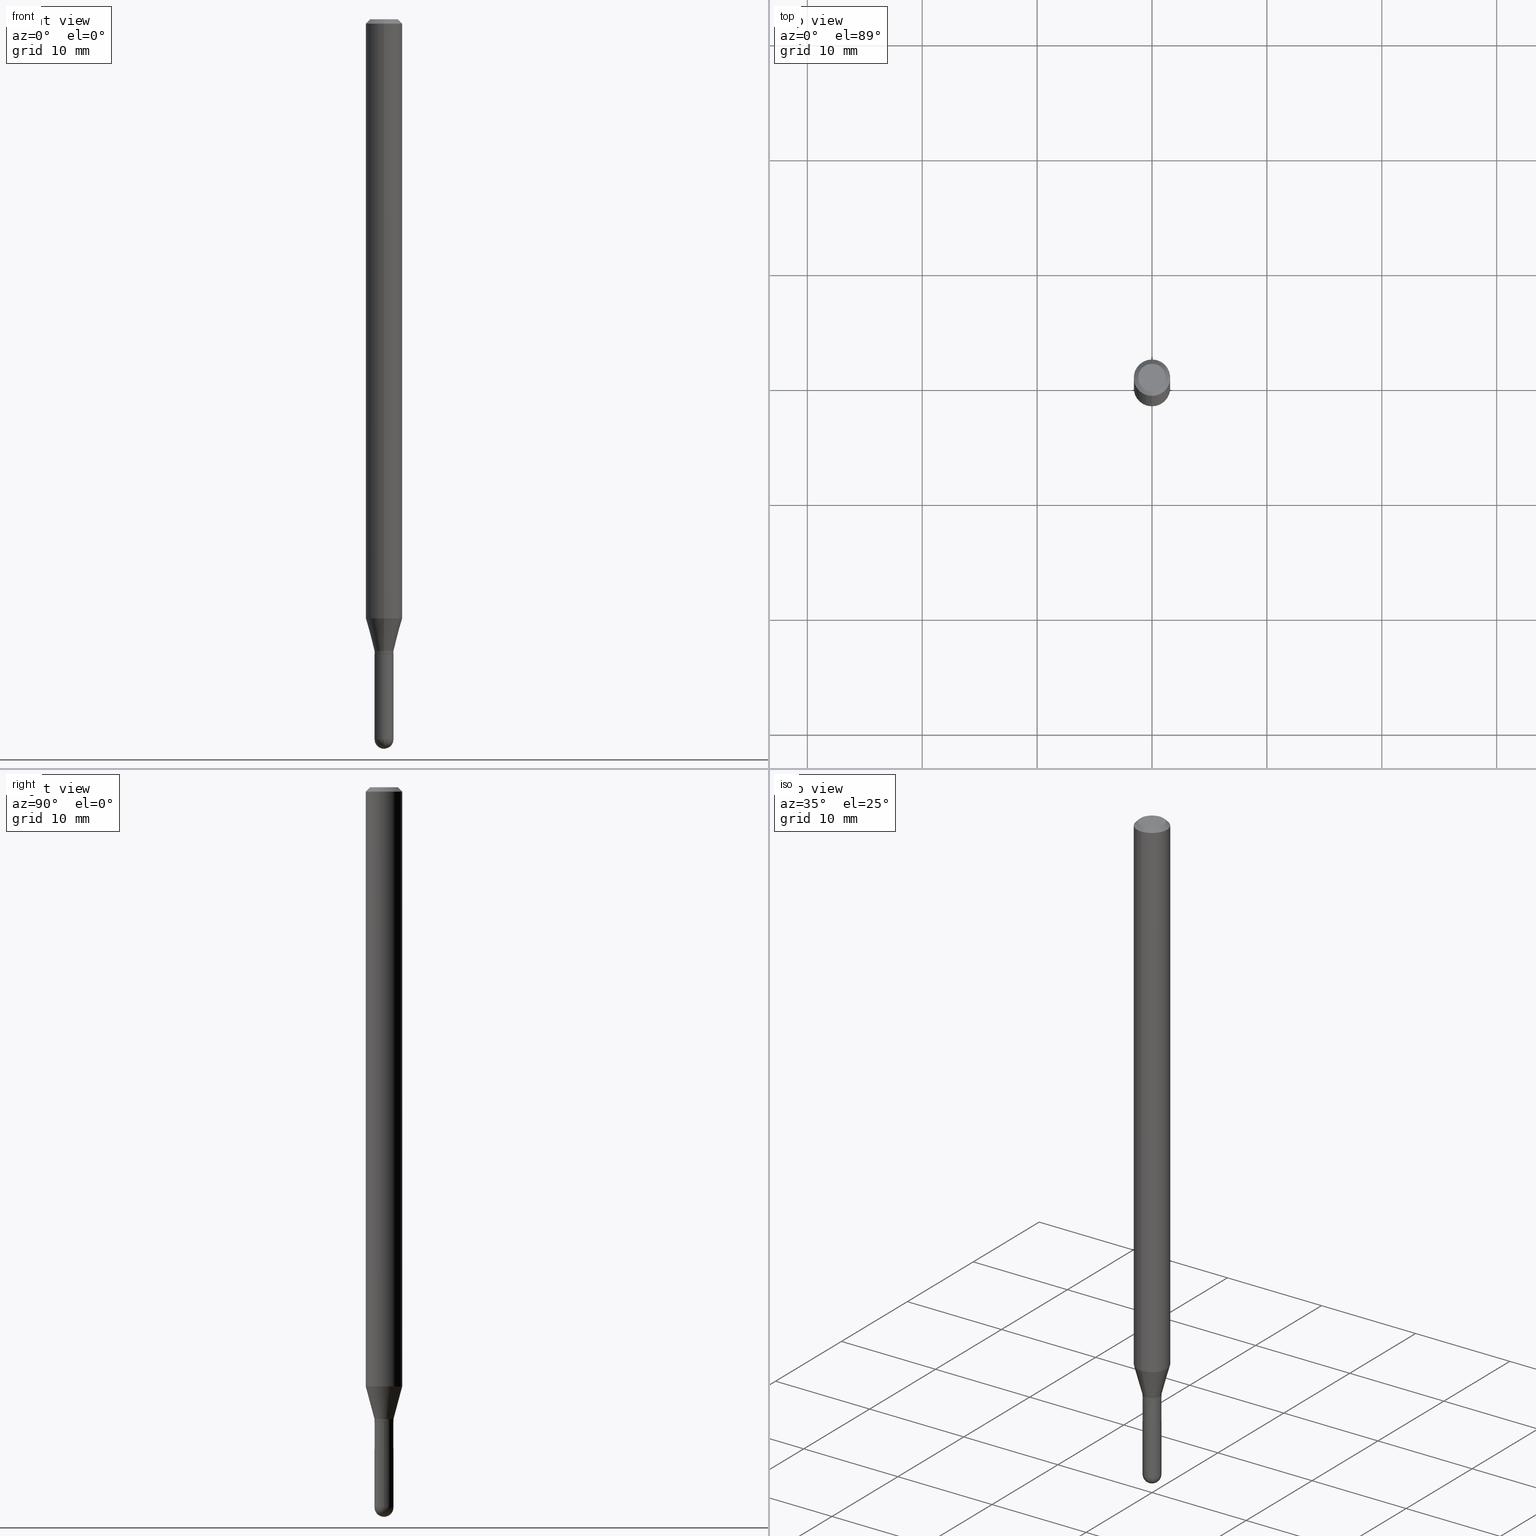
[diagram: canonical four-view strip — front | top / right | iso, engineering-drawing reading convention]
A machine part, canonical four-view strip (front | top / right | iso — engineering-drawing reading convention). The complete STEP part file that produces these views, byte-faithful:
ISO-10303-21;
HEADER;
FILE_DESCRIPTION (( 'STEP AP203' ),
    '1' );
FILE_NAME ('00966.STEP',
    '2024-03-07T19:17:59',
    ( '' ),
    ( '' ),
    'SwSTEP 2.0',
    'SolidWorks 2023',
    '' );
FILE_SCHEMA (( 'CONFIG_CONTROL_DESIGN' ));
ENDSEC;

DATA;
#1 = DIRECTION ( 'NONE',  ( 1.000000000000000000, -6.982962677686287221E-15, 0.000000000000000000 ) ) ;
#2 = CONICAL_SURFACE ( 'NONE', #262, 0.03250000000000020234, 0.2617993877991502960 ) ;
#3 = ORIENTED_EDGE ( 'NONE', *, *, #155, .F. ) ;
#4 = APPROVAL ( #34, 'UNSPECIFIED' ) ;
#5 = APPROVAL_ROLE ( '' ) ;
#6 = CARTESIAN_POINT ( 'NONE',  ( 3.668259760924221134E-31, -5.237141023088193600E-17, -0.01500000000000000812 ) ) ;
#7 = EDGE_CURVE ( 'NONE', #283, #271, #400, .T. ) ;
#8 = SHAPE_DEFINITION_REPRESENTATION ( #75, #347 ) ;
#9 = CARTESIAN_POINT ( 'NONE',  ( 3.668259760924221134E-31, -5.237141023088193600E-17, -0.01500000000000000812 ) ) ;
#10 = AXIS2_PLACEMENT_3D ( 'NONE', #432, #440, #394 ) ;
#11 = EDGE_CURVE ( 'NONE', #389, #494, #391, .T. ) ;
#12 = DIRECTION ( 'NONE',  ( -2.445506507282812490E-29, 3.491427348725460806E-15, 1.000000000000000000 ) ) ;
#13 = APPROVAL_DATE_TIME ( #446, #4 ) ;
#14 = LINE ( 'NONE', #487, #152 ) ;
#15 = ORIENTED_EDGE ( 'NONE', *, *, #216, .T. ) ;
#16 = APPROVAL_STATUS ( 'not_yet_approved' ) ;
#17 = FACE_OUTER_BOUND ( 'NONE', #222, .T. ) ;
#18 = AXIS2_PLACEMENT_3D ( 'NONE', #221, #28, #183 ) ;
#19 = LINE ( 'NONE', #181, #253 ) ;
#20 = FACE_OUTER_BOUND ( 'NONE', #431, .T. ) ;
#21 = ORIENTED_EDGE ( 'NONE', *, *, #193, .F. ) ;
#22 = DIRECTION ( 'NONE',  ( -2.445468806185136597E-29, 3.491481338843145583E-15, 1.000000000000000000 ) ) ;
#23 = ORIENTED_EDGE ( 'NONE', *, *, #107, .F. ) ;
#24 = ADVANCED_FACE ( 'NONE', ( #315 ), #206, .T. ) ;
#25 = DIRECTION ( 'NONE',  ( -2.445506507282812490E-29, 3.491427348725460411E-15, 1.000000000000000000 ) ) ;
#26 = ORGANIZATION ( 'UNSPECIFIED', 'UNSPECIFIED', '' ) ;
#27 = ORIENTED_EDGE ( 'NONE', *, *, #216, .F. ) ;
#28 = DIRECTION ( 'NONE',  ( -2.445506507282812490E-29, 3.491427348725460411E-15, 1.000000000000000000 ) ) ;
#29 = ORIENTED_EDGE ( 'NONE', *, *, #464, .F. ) ;
#30 = EDGE_CURVE ( 'NONE', #35, #202, #81, .T. ) ;
#31 = FACE_OUTER_BOUND ( 'NONE', #502, .T. ) ;
#32 = ORIENTED_EDGE ( 'NONE', *, *, #48, .T. ) ;
#33 = AXIS2_PLACEMENT_3D ( 'NONE', #455, #457, #323 ) ;
#34 = APPROVAL_STATUS ( 'not_yet_approved' ) ;
#35 = VERTEX_POINT ( 'NONE', #200 ) ;
#36 = FACE_OUTER_BOUND ( 'NONE', #224, .T. ) ;
#37 = FACE_OUTER_BOUND ( 'NONE', #274, .T. ) ;
#38 = EDGE_CURVE ( 'NONE', #261, #271, #89, .T. ) ;
#39 = CARTESIAN_POINT ( 'NONE',  ( 3.840629472727447874E-16, 0.04749999999999999362, -1.747056831868805136E-16 ) ) ;
#40 = CARTESIAN_POINT ( 'NONE',  ( -0.03250000000000000111, -7.873674668667618619E-15, -2.175000000000000266 ) ) ;
#41 = PRODUCT_RELATED_PRODUCT_CATEGORY ( 'detail', '', ( #316 ) ) ;
#42 = VERTEX_POINT ( 'NONE', #40 ) ;
#43 = AXIS2_PLACEMENT_3D ( 'NONE', #282, #510, #471 ) ;
#44 = DIRECTION ( 'NONE',  ( -2.445506507282812490E-29, 3.491427348725460411E-15, 1.000000000000000000 ) ) ;
#45 = CC_DESIGN_APPROVAL ( #4, ( #453 ) ) ;
#46 = PERSON_AND_ORGANIZATION ( #154, #26 ) ;
#47 = DIRECTION ( 'NONE',  ( -2.445506507282812490E-29, 3.491427348725460411E-15, 1.000000000000000000 ) ) ;
#48 = EDGE_CURVE ( 'NONE', #95, #390, #476, .T. ) ;
#49 = APPROVAL_DATE_TIME ( #364, #258 ) ;
#50 = DIRECTION ( 'NONE',  ( -2.445506507282812490E-29, 3.491427348725460411E-15, 1.000000000000000000 ) ) ;
#51 = DIRECTION ( 'NONE',  ( 6.982962677686265922E-15, 1.000000000000000000, -3.483106191921935554E-15 ) ) ;
#52 = DATE_TIME_ROLE ( 'classification_date' ) ;
#53 = DIRECTION ( 'NONE',  ( 2.445506507282812490E-29, -3.491427348725460411E-15, -1.000000000000000000 ) ) ;
#54 = CARTESIAN_POINT ( 'NONE',  ( 0.000000000000000000, 0.000000000000000000, 0.000000000000000000 ) ) ;
#55 = CLOSED_SHELL ( 'NONE', ( #247, #291, #503, #101, #429 ) ) ;
#56 = AXIS2_PLACEMENT_3D ( 'NONE', #508, #236, #238 ) ;
#57 = DIRECTION ( 'NONE',  ( -6.982962677686265922E-15, -1.000000000000000000, 3.491427348725460806E-15 ) ) ;
#58 = ORIENTED_EDGE ( 'NONE', *, *, #140, .F. ) ;
#59 = DIRECTION ( 'NONE',  ( -2.445506507282812490E-29, 3.491427348725460411E-15, 1.000000000000000000 ) ) ;
#60 = ORIENTED_EDGE ( 'NONE', *, *, #140, .T. ) ;
#61 = CARTESIAN_POINT ( 'NONE',  ( -2.309263891219727135E-16, -0.03250000000000868861, -2.467499999999999805 ) ) ;
#62 = ORIENTED_EDGE ( 'NONE', *, *, #301, .T. ) ;
#63 = CIRCLE ( 'NONE', #488, 0.06250000000000000000 ) ;
#64 = DESIGN_CONTEXT ( 'detailed design', #337, 'design' ) ;
#65 = FACE_OUTER_BOUND ( 'NONE', #423, .T. ) ;
#66 = VERTEX_POINT ( 'NONE', #277 ) ;
#67 = FACE_OUTER_BOUND ( 'NONE', #194, .T. ) ;
#68 = ADVANCED_FACE ( 'NONE', ( #351 ), #511, .T. ) ;
#69 = ORIENTED_EDGE ( 'NONE', *, *, #122, .F. ) ;
#70 = MANIFOLD_SOLID_BREP ( 'Body-Move/Copy2[2]', #115 ) ;
#71 = ORIENTED_EDGE ( 'NONE', *, *, #48, .F. ) ;
#72 = CIRCLE ( 'NONE', #366, 0.03250000000000000111 ) ;
#73 = DIRECTION ( 'NONE',  ( -2.445506507282812490E-29, 3.491427348725460411E-15, 1.000000000000000000 ) ) ;
#74 = DIRECTION ( 'NONE',  ( -2.445506507282812490E-29, 3.491427348725460411E-15, 1.000000000000000000 ) ) ;
#75 = PRODUCT_DEFINITION_SHAPE ( 'NONE', 'NONE',  #453 ) ;
#76 = DIRECTION ( 'NONE',  ( 1.000000000000000000, 0.000000000000000000, 0.000000000000000000 ) ) ;
#77 = EDGE_LOOP ( 'NONE', ( #109, #231, #458, #192 ) ) ;
#78 = LINE ( 'NONE', #241, #234 ) ;
#79 = PERSON_AND_ORGANIZATION ( #154, #26 ) ;
#80 = EDGE_CURVE ( 'NONE', #190, #509, #78, .T. ) ;
#81 = LINE ( 'NONE', #392, #410 ) ;
#82 = AXIS2_PLACEMENT_3D ( 'NONE', #498, #377, #304 ) ;
#83 = CALENDAR_DATE ( 2024, 7, 3 ) ;
#84 = CARTESIAN_POINT ( 'NONE',  ( 5.318894653452672995E-29, -7.593971911983841869E-15, -2.175000000000000266 ) ) ;
#85 = EDGE_CURVE ( 'NONE', #389, #202, #399, .T. ) ;
#86 = COORDINATED_UNIVERSAL_TIME_OFFSET ( 5, 0, .BEHIND. ) ;
#87 = DIRECTION ( 'NONE',  ( -2.445468806185136877E-29, 3.491481338843145188E-15, 1.000000000000000000 ) ) ;
#88 = DIRECTION ( 'NONE',  ( -6.982962677686265922E-15, -1.000000000000000000, 3.483106191921935554E-15 ) ) ;
#89 = CIRCLE ( 'NONE', #142, 0.03250000000000000111 ) ;
#90 = CIRCLE ( 'NONE', #401, 0.06250000000000000000 ) ;
#91 = APPROVAL_DATE_TIME ( #173, #328 ) ;
#92 = DIRECTION ( 'NONE',  ( -6.982962677686265133E-15, -1.000000000000000000, 0.000000000000000000 ) ) ;
#93 = ADVANCED_FACE ( 'NONE', ( #37 ), #452, .T. ) ;
#94 = CARTESIAN_POINT ( 'NONE',  ( 4.440892098501132019E-16, 0.06249999999999995837, -0.01500000000000022669 ) ) ;
#95 = VERTEX_POINT ( 'NONE', #129 ) ;
#96 = LINE ( 'NONE', #418, #454 ) ;
#97 = EDGE_LOOP ( 'NONE', ( #435, #187, #314, #267 ) ) ;
#98 = VECTOR ( 'NONE', #384, 39.37007874015748143 ) ;
#99 = DIRECTION ( 'NONE',  ( -6.982962677686265922E-15, -1.000000000000000000, 3.491427348725460411E-15 ) ) ;
#100 = ORIENTED_EDGE ( 'NONE', *, *, #398, .T. ) ;
#101 = ADVANCED_FACE ( 'NONE', ( #483 ), #131, .T. ) ;
#102 = CARTESIAN_POINT ( 'NONE',  ( 2.309263891220869011E-16, 0.03249999999999263894, -2.165000000000000036 ) ) ;
#103 = ORIENTED_EDGE ( 'NONE', *, *, #38, .F. ) ;
#104 = DIRECTION ( 'NONE',  ( 6.982962677686266711E-15, 1.000000000000000000, 0.000000000000000000 ) ) ;
#105 = EDGE_LOOP ( 'NONE', ( #146, #324, #27, #124 ) ) ;
#106 = CONICAL_SURFACE ( 'NONE', #444, 0.06250000000000000000, 0.7853981633974483900 ) ;
#107 = EDGE_CURVE ( 'NONE', #294, #261, #417, .T. ) ;
#108 = FACE_OUTER_BOUND ( 'NONE', #427, .T. ) ;
#109 = ORIENTED_EDGE ( 'NONE', *, *, #405, .F. ) ;
#110 = LOCAL_TIME ( 14, 17, 59.00000000000000000, #130 ) ;
#111 = APPLICATION_PROTOCOL_DEFINITION ( 'international standard', 'config_control_design', 1994, #337 ) ;
#112 = EDGE_LOOP ( 'NONE', ( #60, #482, #143, #21, #239 ) ) ;
#113 = LENGTH_MEASURE_WITH_UNIT ( LENGTH_MEASURE( 0.02539999999999999897 ), #348 );
#114 = DIRECTION ( 'NONE',  ( -4.937700262164674260E-15, -0.7071067811865632269, 0.7071067811865319186 ) ) ;
#115 = CLOSED_SHELL ( 'NONE', ( #68, #93, #132, #359, #287, #439, #249, #182, #342, #281, #475, #24 ) ) ;
#116 = DIRECTION ( 'NONE',  ( 0.000000000000000000, 0.000000000000000000, 1.000000000000000000 ) ) ;
#117 = CARTESIAN_POINT ( 'NONE',  ( 5.318976653340118258E-29, -7.593854483477877213E-15, -2.175000000000000266 ) ) ;
#118 = AXIS2_PLACEMENT_3D ( 'NONE', #311, #116, #76 ) ;
#119 = EDGE_CURVE ( 'NONE', #509, #66, #295, .T. ) ;
#120 =( NAMED_UNIT ( * ) PLANE_ANGLE_UNIT ( ) SI_UNIT ( $, .RADIAN. ) );
#121 = EDGE_LOOP ( 'NONE', ( #62, #499, #280, #310 ) ) ;
#122 = EDGE_CURVE ( 'NONE', #229, #202, #63, .T. ) ;
#123 = APPLICATION_PROTOCOL_DEFINITION ( 'international standard', 'config_control_design', 1994, #358 ) ;
#124 = ORIENTED_EDGE ( 'NONE', *, *, #85, .F. ) ;
#125 = AXIS2_PLACEMENT_3D ( 'NONE', #312, #74, #243 ) ;
#126 = SECURITY_CLASSIFICATION_LEVEL ( 'unclassified' ) ;
#127 = DIRECTION ( 'NONE',  ( 1.000000000000000000, -6.982962677686287221E-15, 0.000000000000000000 ) ) ;
#128 = CIRCLE ( 'NONE', #56, 0.03200000000000000067 ) ;
#129 = CARTESIAN_POINT ( 'NONE',  ( -2.234548056859072945E-16, -0.03200000000000759182, -2.175000000000000266 ) ) ;
#130 = COORDINATED_UNIVERSAL_TIME_OFFSET ( 5, 0, .BEHIND. ) ;
#131 = SPHERICAL_SURFACE ( 'NONE', #186, 0.03250000000000013989 ) ;
#132 = ADVANCED_FACE ( 'NONE', ( #372 ), #106, .T. ) ;
#133 = DIRECTION ( 'NONE',  ( -2.445506507282812490E-29, 3.491427348725460411E-15, 1.000000000000000000 ) ) ;
#134 = CIRCLE ( 'NONE', #428, 0.03249999999999992478 ) ;
#135 = COORDINATED_UNIVERSAL_TIME_OFFSET ( 5, 0, .BEHIND. ) ;
#136 = DIRECTION ( 'NONE',  ( -2.445468806185136597E-29, 3.491481338843145583E-15, 1.000000000000000000 ) ) ;
#137 = ORIENTED_EDGE ( 'NONE', *, *, #421, .F. ) ;
#138 = CARTESIAN_POINT ( 'NONE',  ( 0.03250000000000000111, -8.331547344814454343E-15, -2.467499999999999805 ) ) ;
#139 = ORIENTED_EDGE ( 'NONE', *, *, #464, .T. ) ;
#140 = EDGE_CURVE ( 'NONE', #271, #303, #72, .T. ) ;
#141 = DIRECTION ( 'NONE',  ( -6.982962677686265133E-15, -1.000000000000000000, 0.000000000000000000 ) ) ;
#142 = AXIS2_PLACEMENT_3D ( 'NONE', #357, #438, #1 ) ;
#143 = ORIENTED_EDGE ( 'NONE', *, *, #214, .F. ) ;
#144 = AXIS2_PLACEMENT_3D ( 'NONE', #164, #396, #474 ) ;
#145 = CARTESIAN_POINT ( 'NONE',  ( 3.316907271900976096E-16, 0.04749999999999999362, -1.702742411256699544E-16 ) ) ;
#146 = ORIENTED_EDGE ( 'NONE', *, *, #11, .T. ) ;
#147 = CARTESIAN_POINT ( 'NONE',  ( 2.167424079467442891E-46, -3.094411601360583198E-32, -8.862884122421143106E-18 ) ) ;
#148 = ORIENTED_EDGE ( 'NONE', *, *, #353, .F. ) ;
#149 = DIRECTION ( 'NONE',  ( 1.000000000000000000, -6.982962677686287221E-15, 0.000000000000000000 ) ) ;
#150 = EDGE_LOOP ( 'NONE', ( #425, #385, #354, #69 ) ) ;
#151 = DIRECTION ( 'NONE',  ( 2.438088387897960049E-29, -3.491481338843145188E-15, -1.000000000000000000 ) ) ;
#152 = VECTOR ( 'NONE', #246, 39.37007874015748143 ) ;
#153 = DIRECTION ( 'NONE',  ( -2.445506507282812490E-29, 3.491427348725460411E-15, 1.000000000000000000 ) ) ;
#154 = PERSON ( 'UNSPECIFIED', 'UNSPECIFIED', 'UNSPECIFIED', ('UNSPECIFIED'), ('UNSPECIFIED'), ('UNSPECIFIED') ) ;
#155 = EDGE_CURVE ( 'NONE', #303, #42, #412, .T. ) ;
#156 = ORIENTED_EDGE ( 'NONE', *, *, #379, .F. ) ;
#157 = CC_DESIGN_PERSON_AND_ORGANIZATION_ASSIGNMENT ( #343, #504, ( #316 ) ) ;
#158 = CARTESIAN_POINT ( 'NONE',  ( -2.234548056859072945E-16, -0.03200000000000759182, -2.175000000000000266 ) ) ;
#159 = VECTOR ( 'NONE', #395, 39.37007874015748143 ) ;
#160 = DIRECTION ( 'NONE',  ( -6.982962677686265133E-15, -1.000000000000000000, 0.000000000000000000 ) ) ;
#161 = CARTESIAN_POINT ( 'NONE',  ( 6.031414988821991097E-29, -8.619210305692690707E-15, -2.467499999999999805 ) ) ;
#162 = AXIS2_PLACEMENT_3D ( 'NONE', #269, #340, #149 ) ;
#163 = UNCERTAINTY_MEASURE_WITH_UNIT (LENGTH_MEASURE( 1.000000000000000082E-05 ), #479, 'distance_accuracy_value', 'NONE');
#164 = CARTESIAN_POINT ( 'NONE',  ( 5.318976653340118258E-29, -7.593854483477877213E-15, -2.175000000000000266 ) ) ;
#165 = ORIENTED_EDGE ( 'NONE', *, *, #254, .F. ) ;
#166 = PERSON_AND_ORGANIZATION ( #154, #26 ) ;
#167 = DIRECTION ( 'NONE',  ( -6.982962677686265922E-15, -1.000000000000000000, 3.491427348725460411E-15 ) ) ;
#168 = AXIS2_PLACEMENT_3D ( 'NONE', #233, #153, #308 ) ;
#169 = DATE_AND_TIME ( #321, #110 ) ;
#170 = CARTESIAN_POINT ( 'NONE',  ( 6.034194279261823970E-29, -8.615230203595461689E-15, -2.467499999999999805 ) ) ;
#171 = AXIS2_PLACEMENT_3D ( 'NONE', #240, #199, #350 ) ;
#172 = CARTESIAN_POINT ( 'NONE',  ( 3.668259760924221134E-31, -5.237141023088193600E-17, -0.01500000000000000812 ) ) ;
#173 = DATE_AND_TIME ( #83, #407 ) ;
#174 = CARTESIAN_POINT ( 'NONE',  ( -0.03250000000000000111, 2.309263891220325683E-16, -1.598653904332844407E-30 ) ) ;
#175 = CC_DESIGN_DATE_AND_TIME_ASSIGNMENT ( #177, #52, ( #380 ) ) ;
#176 = ORIENTED_EDGE ( 'NONE', *, *, #405, .T. ) ;
#177 = DATE_AND_TIME ( #450, #257 ) ;
#178 = FACE_OUTER_BOUND ( 'NONE', #112, .T. ) ;
#179 = EDGE_CURVE ( 'NONE', #416, #229, #259, .T. ) ;
#180 = CONICAL_SURFACE ( 'NONE', #313, 0.06250000000000000000, 0.7853981633974483900 ) ;
#181 = CARTESIAN_POINT ( 'NONE',  ( 2.273736754432852137E-16, 0.03199999999999240258, -2.175000000000000266 ) ) ;
#182 = ADVANCED_FACE ( 'NONE', ( #17 ), #180, .T. ) ;
#183 = DIRECTION ( 'NONE',  ( -6.982962677686265922E-15, -1.000000000000000000, 0.000000000000000000 ) ) ;
#184 = VERTEX_POINT ( 'NONE', #289 ) ;
#185 = DIRECTION ( 'NONE',  ( 1.000000000000000000, -6.982962677686258033E-15, 0.000000000000000000 ) ) ;
#186 = AXIS2_PLACEMENT_3D ( 'NONE', #215, #317, #212 ) ;
#187 = ORIENTED_EDGE ( 'NONE', *, *, #379, .T. ) ;
#188 = AXIS2_PLACEMENT_3D ( 'NONE', #84, #136, #451 ) ;
#189 = CARTESIAN_POINT ( 'NONE',  ( 5.318976653340118258E-29, -7.593854483477877213E-15, -2.175000000000000266 ) ) ;
#190 = VERTEX_POINT ( 'NONE', #252 ) ;
#191 = DIRECTION ( 'NONE',  ( 2.445506507282811929E-29, -3.491427348725460806E-15, -1.000000000000000000 ) ) ;
#192 = ORIENTED_EDGE ( 'NONE', *, *, #272, .F. ) ;
#193 = EDGE_CURVE ( 'NONE', #261, #300, #361, .T. ) ;
#194 = EDGE_LOOP ( 'NONE', ( #3, #218, #331, #341, #404 ) ) ;
#195 = CC_DESIGN_SECURITY_CLASSIFICATION ( #380, ( #473 ) ) ;
#196 = DIRECTION ( 'NONE',  ( -1.000000000000000000, 6.982962677686265922E-15, -4.876176775795935793E-29 ) ) ;
#197 = CIRCLE ( 'NONE', #306, 0.06250000000000000000 ) ;
#198 = ORIENTED_EDGE ( 'NONE', *, *, #254, .T. ) ;
#199 = DIRECTION ( 'NONE',  ( -1.000000000000000000, 7.105427357601001070E-15, -4.926315508542082329E-29 ) ) ;
#200 = CARTESIAN_POINT ( 'NONE',  ( -3.773273898774340269E-16, -0.04749999999999999362, 1.569799149420382028E-16 ) ) ;
#201 = CARTESIAN_POINT ( 'NONE',  ( 4.440892098501125116E-16, 0.06249999999999279743, -2.053038475772935190 ) ) ;
#202 = VERTEX_POINT ( 'NONE', #486 ) ;
#203 = DIRECTION ( 'NONE',  ( 1.000000000000000000, -6.982962677686265922E-15, 4.883557194083112340E-29 ) ) ;
#204 = CIRCLE ( 'NONE', #496, 0.03250000000000020234 ) ;
#205 = DATE_TIME_ROLE ( 'creation_date' ) ;
#206 = CYLINDRICAL_SURFACE ( 'NONE', #168, 0.03250000000000006356 ) ;
#207 = PERSON_AND_ORGANIZATION_ROLE ( 'classification_officer' ) ;
#208 = DIRECTION ( 'NONE',  ( 2.445506507282812490E-29, -3.491427348725460411E-15, -1.000000000000000000 ) ) ;
#209 = LOCAL_TIME ( 14, 17, 59.00000000000000000, #242 ) ;
#210 = VECTOR ( 'NONE', #365, 39.37007874015748143 ) ;
#211 = CALENDAR_DATE ( 2024, 7, 3 ) ;
#212 = DIRECTION ( 'NONE',  ( 6.982962677686266711E-15, 1.000000000000000000, 0.000000000000000000 ) ) ;
#213 = CIRCLE ( 'NONE', #18, 0.03249999999999992478 ) ;
#214 = EDGE_CURVE ( 'NONE', #300, #42, #506, .T. ) ;
#215 = CARTESIAN_POINT ( 'NONE',  ( 6.031414988821991097E-29, -8.619210305692690707E-15, -2.467499999999999805 ) ) ;
#216 = EDGE_CURVE ( 'NONE', #202, #229, #90, .T. ) ;
#217 = DIRECTION ( 'NONE',  ( -2.445506507282812490E-29, 3.491427348725460411E-15, 1.000000000000000000 ) ) ;
#218 = ORIENTED_EDGE ( 'NONE', *, *, #353, .T. ) ;
#219 = EDGE_CURVE ( 'NONE', #494, #229, #409, .T. ) ;
#220 = CIRCLE ( 'NONE', #144, 0.03200000000000000067 ) ;
#221 = CARTESIAN_POINT ( 'NONE',  ( 5.317753900086477133E-29, -7.592108769803514911E-15, -2.174500000000000099 ) ) ;
#222 = EDGE_LOOP ( 'NONE', ( #420, #165, #382, #480 ) ) ;
#223 = CARTESIAN_POINT ( 'NONE',  ( -4.364351673553415767E-16, -0.06250000000000720257, -2.053038475772934746 ) ) ;
#224 = EDGE_LOOP ( 'NONE', ( #297, #100 ) ) ;
#225 = CARTESIAN_POINT ( 'NONE',  ( 0.000000000000000000, 0.000000000000000000, 0.000000000000000000 ) ) ;
#226 = ORIENTED_EDGE ( 'NONE', *, *, #413, .T. ) ;
#227 = VECTOR ( 'NONE', #87, 39.37007874015748143 ) ;
#228 = CARTESIAN_POINT ( 'NONE',  ( 5.294521588267289045E-29, -7.558940209990621706E-15, -2.165000000000000036 ) ) ;
#229 = VERTEX_POINT ( 'NONE', #94 ) ;
#230 = DIRECTION ( 'NONE',  ( -2.445506507282812490E-29, 3.491427348725460411E-15, 1.000000000000000000 ) ) ;
#231 = ORIENTED_EDGE ( 'NONE', *, *, #119, .T. ) ;
#232 = PERSON_AND_ORGANIZATION ( #154, #26 ) ;
#233 = CARTESIAN_POINT ( 'NONE',  ( 0.000000000000000000, 0.000000000000000000, 0.000000000000000000 ) ) ;
#234 = VECTOR ( 'NONE', #478, 39.37007874015748143 ) ;
#235 = EDGE_CURVE ( 'NONE', #390, #66, #14, .T. ) ;
#236 = DIRECTION ( 'NONE',  ( -2.445506507282812490E-29, 3.491427348725460411E-15, 1.000000000000000000 ) ) ;
#237 = CARTESIAN_POINT ( 'NONE',  ( -4.364351673553916201E-16, -0.06250000000000000000, 2.182142092953412757E-16 ) ) ;
#238 = DIRECTION ( 'NONE',  ( -6.982962677686265133E-15, -1.000000000000000000, 0.000000000000000000 ) ) ;
#239 = ORIENTED_EDGE ( 'NONE', *, *, #38, .T. ) ;
#240 = CARTESIAN_POINT ( 'NONE',  ( 6.031414988821991097E-29, -8.619210305692690707E-15, -2.467499999999999805 ) ) ;
#241 = CARTESIAN_POINT ( 'NONE',  ( 2.309263891220329627E-16, 0.03250000000000006356, -1.134713888335776872E-16 ) ) ;
#242 = COORDINATED_UNIVERSAL_TIME_OFFSET ( 5, 0, .BEHIND. ) ;
#243 = DIRECTION ( 'NONE',  ( -6.982962677686265922E-15, -1.000000000000000000, 3.491427348725460411E-15 ) ) ;
#244 = AXIS2_PLACEMENT_3D ( 'NONE', #296, #426, #104 ) ;
#245 = PERSON_AND_ORGANIZATION_ROLE ( 'creator' ) ;
#246 = DIRECTION ( 'NONE',  ( -2.445506507282812490E-29, 3.491427348725460806E-15, 1.000000000000000000 ) ) ;
#247 = ADVANCED_FACE ( 'NONE', ( #178 ), #322, .T. ) ;
#248 = DIRECTION ( 'NONE',  ( -2.445506507282812490E-29, 3.491427348725460411E-15, 1.000000000000000000 ) ) ;
#249 = ADVANCED_FACE ( 'NONE', ( #292 ), #408, .T. ) ;
#250 = CC_DESIGN_APPROVAL ( #258, ( #380 ) ) ;
#251 = PERSON_AND_ORGANIZATION_ROLE ( 'creator' ) ;
#252 = CARTESIAN_POINT ( 'NONE',  ( 2.309263891220843373E-16, 0.03249999999999221567, -2.174500000000000099 ) ) ;
#253 = VECTOR ( 'NONE', #495, 39.37007874015748143 ) ;
#254 = EDGE_CURVE ( 'NONE', #416, #35, #419, .T. ) ;
#255 = CARTESIAN_POINT ( 'NONE',  ( 5.294521588267289045E-29, -7.558940209990621706E-15, -2.165000000000000036 ) ) ;
#256 = APPROVAL_PERSON_ORGANIZATION ( #360, #328, #325 ) ;
#257 = LOCAL_TIME ( 14, 17, 59.00000000000000000, #411 ) ;
#258 = APPROVAL ( #442, 'UNSPECIFIED' ) ;
#259 = LINE ( 'NONE', #367, #210 ) ;
#260 = DIRECTION ( 'NONE',  ( -2.445506507282811929E-29, 3.491427348725460806E-15, 1.000000000000000000 ) ) ;
#261 = VERTEX_POINT ( 'NONE', #138 ) ;
#262 = AXIS2_PLACEMENT_3D ( 'NONE', #228, #465, #141 ) ;
#263 = DIRECTION ( 'NONE',  ( -1.807323732225330139E-15, -0.2588190451025181860, 0.9659258262890689783 ) ) ;
#264 = ORIENTED_EDGE ( 'NONE', *, *, #7, .T. ) ;
#265 = CC_DESIGN_APPROVAL ( #328, ( #473 ) ) ;
#266 = CARTESIAN_POINT ( 'NONE',  ( 5.294521588267289045E-29, -7.558940209990621706E-15, -2.165000000000000036 ) ) ;
#267 = ORIENTED_EDGE ( 'NONE', *, *, #119, .F. ) ;
#268 = CC_DESIGN_PERSON_AND_ORGANIZATION_ASSIGNMENT ( #166, #245, ( #453 ) ) ;
#269 = CARTESIAN_POINT ( 'NONE',  ( 6.034194279261823970E-29, -8.615230203595461689E-15, -2.467499999999999805 ) ) ;
#270 = VECTOR ( 'NONE', #284, 39.37007874015748143 ) ;
#271 = VERTEX_POINT ( 'NONE', #329 ) ;
#272 = EDGE_CURVE ( 'NONE', #494, #389, #197, .T. ) ;
#273 = DIRECTION ( 'NONE',  ( 6.982962677686265922E-15, 1.000000000000000000, -3.491427348725460806E-15 ) ) ;
#274 = EDGE_LOOP ( 'NONE', ( #139, #305, #466, #71 ) ) ;
#275 = CARTESIAN_POINT ( 'NONE',  ( 3.375077994860999036E-16, 0.03249999999999263894, -2.165000000000000036 ) ) ;
#276 = DIRECTION ( 'NONE',  ( -6.982962677686265922E-15, -1.000000000000000000, 4.370956789862821150E-15 ) ) ;
#277 = CARTESIAN_POINT ( 'NONE',  ( -2.269462870247520766E-16, -0.03250000000000775879, -2.165000000000000036 ) ) ;
#278 =( GEOMETRIC_REPRESENTATION_CONTEXT ( 3 ) GLOBAL_UNCERTAINTY_ASSIGNED_CONTEXT ( ( #163 ) ) GLOBAL_UNIT_ASSIGNED_CONTEXT ( ( #479, #120, #477 ) ) REPRESENTATION_CONTEXT ( 'NONE', 'WORKASPACE' ) );
#279 = EDGE_LOOP ( 'NONE', ( #137, #264, #103, #23 ) ) ;
#280 = ORIENTED_EDGE ( 'NONE', *, *, #413, .F. ) ;
#281 = ADVANCED_FACE ( 'NONE', ( #65 ), #387, .F. ) ;
#282 = CARTESIAN_POINT ( 'NONE',  ( 0.000000000000000000, 0.000000000000000000, 0.000000000000000000 ) ) ;
#283 = VERTEX_POINT ( 'NONE', #501 ) ;
#284 = DIRECTION ( 'NONE',  ( -2.445468806185136877E-29, 3.491481338843145188E-15, 1.000000000000000000 ) ) ;
#285 = AXIS2_PLACEMENT_3D ( 'NONE', #309, #230, #160 ) ;
#286 = DIRECTION ( 'NONE',  ( -6.982962677686265133E-15, -1.000000000000000000, 0.000000000000000000 ) ) ;
#287 = ADVANCED_FACE ( 'NONE', ( #108 ), #2, .T. ) ;
#288 = CARTESIAN_POINT ( 'NONE',  ( 3.668259760924221134E-31, -5.237141023088193600E-17, -0.01500000000000000812 ) ) ;
#289 = CARTESIAN_POINT ( 'NONE',  ( 2.291500322826851699E-16, 0.03199999999999240258, -2.175000000000000266 ) ) ;
#290 = VECTOR ( 'NONE', #12, 39.37007874015748143 ) ;
#291 = ADVANCED_FACE ( 'NONE', ( #20 ), #492, .T. ) ;
#292 = FACE_OUTER_BOUND ( 'NONE', #150, .T. ) ;
#293 = FACE_OUTER_BOUND ( 'NONE', #105, .T. ) ;
#294 = VERTEX_POINT ( 'NONE', #61 ) ;
#295 = CIRCLE ( 'NONE', #318, 0.03250000000000020234 ) ;
#296 = CARTESIAN_POINT ( 'NONE',  ( 6.031414988821991097E-29, -8.619210305692690707E-15, -2.467499999999999805 ) ) ;
#297 = ORIENTED_EDGE ( 'NONE', *, *, #214, .T. ) ;
#298 = AXIS2_PLACEMENT_3D ( 'NONE', #352, #151, #196 ) ;
#299 = DIRECTION ( 'NONE',  ( -6.982962677686265922E-15, -1.000000000000000000, 0.000000000000000000 ) ) ;
#300 = VERTEX_POINT ( 'NONE', #330 ) ;
#301 = EDGE_CURVE ( 'NONE', #390, #190, #213, .T. ) ;
#302 = DIRECTION ( 'NONE',  ( -6.982962677686265922E-15, -1.000000000000000000, 4.370956789862821150E-15 ) ) ;
#303 = VERTEX_POINT ( 'NONE', #468 ) ;
#304 = DIRECTION ( 'NONE',  ( -6.982962677686266711E-15, -1.000000000000000000, 3.491427348725460806E-15 ) ) ;
#305 = ORIENTED_EDGE ( 'NONE', *, *, #369, .T. ) ;
#306 = AXIS2_PLACEMENT_3D ( 'NONE', #459, #217, #302 ) ;
#307 = DIRECTION ( 'NONE',  ( -6.982962677686265133E-15, -1.000000000000000000, 0.000000000000000000 ) ) ;
#308 = DIRECTION ( 'NONE',  ( -6.982962677686265922E-15, -1.000000000000000000, 3.491427348725460411E-15 ) ) ;
#309 = CARTESIAN_POINT ( 'NONE',  ( 5.294521588267289045E-29, -7.558940209990621706E-15, -2.165000000000000036 ) ) ;
#310 = ORIENTED_EDGE ( 'NONE', *, *, #235, .F. ) ;
#311 = CARTESIAN_POINT ( 'NONE',  ( 0.000000000000000000, 0.000000000000000000, 0.000000000000000000 ) ) ;
#312 = CARTESIAN_POINT ( 'NONE',  ( 0.000000000000000000, 0.000000000000000000, 0.000000000000000000 ) ) ;
#313 = AXIS2_PLACEMENT_3D ( 'NONE', #172, #208, #447 ) ;
#314 = ORIENTED_EDGE ( 'NONE', *, *, #235, .T. ) ;
#315 = FACE_OUTER_BOUND ( 'NONE', #97, .T. ) ;
#316 = PRODUCT ( '00966', '00966', '', ( #434 ) ) ;
#317 = DIRECTION ( 'NONE',  ( -1.000000000000000000, 6.982962677686266711E-15, -4.883557194083112901E-29 ) ) ;
#318 = AXIS2_PLACEMENT_3D ( 'NONE', #255, #133, #92 ) ;
#319 = CARTESIAN_POINT ( 'NONE',  ( 0.03250000000000000111, -2.269462870248036977E-16, 1.584757452133679343E-30 ) ) ;
#320 = AXIS2_PLACEMENT_3D ( 'NONE', #381, #22, #185 ) ;
#321 = CALENDAR_DATE ( 2024, 7, 3 ) ;
#322 = CYLINDRICAL_SURFACE ( 'NONE', #445, 0.03250000000000000111 ) ;
#323 = DIRECTION ( 'NONE',  ( 1.000000000000000000, -6.982962677686287221E-15, 0.000000000000000000 ) ) ;
#324 = ORIENTED_EDGE ( 'NONE', *, *, #219, .T. ) ;
#325 = APPROVAL_ROLE ( '' ) ;
#326 = DIRECTION ( 'NONE',  ( -2.445468806185136597E-29, 3.491481338843145583E-15, 1.000000000000000000 ) ) ;
#327 = AXIS2_PLACEMENT_3D ( 'NONE', #145, #191, #273 ) ;
#328 = APPROVAL ( #16, 'UNSPECIFIED' ) ;
#329 = CARTESIAN_POINT ( 'NONE',  ( 2.269462870248644893E-16, 0.03249999999999145933, -2.467499999999999805 ) ) ;
#330 = CARTESIAN_POINT ( 'NONE',  ( 0.03250000000000000111, -7.820918199008645222E-15, -2.175000000000000266 ) ) ;
#331 = ORIENTED_EDGE ( 'NONE', *, *, #107, .T. ) ;
#332 = AXIS2_PLACEMENT_3D ( 'NONE', #161, #203, #441 ) ;
#333 = EDGE_CURVE ( 'NONE', #35, #416, #355, .T. ) ;
#334 = LINE ( 'NONE', #102, #98 ) ;
#335 = ORIENTED_EDGE ( 'NONE', *, *, #373, .F. ) ;
#336 = DIMENSIONAL_EXPONENTS ( 1.000000000000000000, 0.000000000000000000, 0.000000000000000000, 0.000000000000000000, 0.000000000000000000, 0.000000000000000000, 0.000000000000000000 ) ;
#337 = APPLICATION_CONTEXT ( 'configuration controlled 3d designs of mechanical parts and assemblies' ) ;
#338 = DIRECTION ( 'NONE',  ( -6.982962677686266711E-15, -1.000000000000000000, 3.491427348725460806E-15 ) ) ;
#339 = EDGE_LOOP ( 'NONE', ( #463, #349, #15, #433 ) ) ;
#340 = DIRECTION ( 'NONE',  ( -2.445468806185136597E-29, 3.491481338843145583E-15, 1.000000000000000000 ) ) ;
#341 = ORIENTED_EDGE ( 'NONE', *, *, #193, .T. ) ;
#342 = ADVANCED_FACE ( 'NONE', ( #424 ), #493, .F. ) ;
#343 = PERSON_AND_ORGANIZATION ( #154, #26 ) ;
#344 = AXIS2_PLACEMENT_3D ( 'NONE', #443, #44, #276 ) ;
#345 = ORIENTED_EDGE ( 'NONE', *, *, #11, .F. ) ;
#346 = CIRCLE ( 'NONE', #162, 0.03250000000000000111 ) ;
#347 = ADVANCED_BREP_SHAPE_REPRESENTATION ( '00966', ( #403, #70, #118 ), #278 ) ;
#348 =( LENGTH_UNIT ( ) NAMED_UNIT ( * ) SI_UNIT ( $, .METRE. ) );
#349 = ORIENTED_EDGE ( 'NONE', *, *, #30, .T. ) ;
#350 = DIRECTION ( 'NONE',  ( -7.105427357601000281E-15, -1.000000000000000000, 0.000000000000000000 ) ) ;
#351 = FACE_OUTER_BOUND ( 'NONE', #121, .T. ) ;
#352 = CARTESIAN_POINT ( 'NONE',  ( 2.269462870248568472E-16, 0.03249999999999240302, -2.175000000000000266 ) ) ;
#353 = EDGE_CURVE ( 'NONE', #303, #294, #346, .T. ) ;
#354 = ORIENTED_EDGE ( 'NONE', *, *, #85, .T. ) ;
#355 = CIRCLE ( 'NONE', #82, 0.04749999999999999362 ) ;
#356 = APPROVAL_PERSON_ORGANIZATION ( #232, #4, #371 ) ;
#357 = CARTESIAN_POINT ( 'NONE',  ( 6.034194279261823970E-29, -8.615230203595461689E-15, -2.467499999999999805 ) ) ;
#358 = APPLICATION_CONTEXT ( 'configuration controlled 3d designs of mechanical parts and assemblies' ) ;
#359 = ADVANCED_FACE ( 'NONE', ( #293 ), #430, .T. ) ;
#360 = PERSON_AND_ORGANIZATION ( #154, #26 ) ;
#361 = LINE ( 'NONE', #319, #227 ) ;
#362 = CC_DESIGN_PERSON_AND_ORGANIZATION_ASSIGNMENT ( #46, #448, ( #473 ) ) ;
#363 = APPROVAL_PERSON_ORGANIZATION ( #79, #258, #5 ) ;
#364 = DATE_AND_TIME ( #402, #209 ) ;
#365 = DIRECTION ( 'NONE',  ( 4.937700262164548042E-15, 0.7071067811865451302, -0.7071067811865499042 ) ) ;
#366 = AXIS2_PLACEMENT_3D ( 'NONE', #170, #485, #127 ) ;
#367 = CARTESIAN_POINT ( 'NONE',  ( 4.364351673553919652E-16, 0.06249999999999995143, -0.01500000000000022669 ) ) ;
#368 = AXIS2_PLACEMENT_3D ( 'NONE', #225, #374, #99 ) ;
#369 = EDGE_CURVE ( 'NONE', #184, #190, #19, .T. ) ;
#370 = DIRECTION ( 'NONE',  ( -2.445506507282812490E-29, 3.491427348725460411E-15, 1.000000000000000000 ) ) ;
#371 = APPROVAL_ROLE ( '' ) ;
#372 = FACE_OUTER_BOUND ( 'NONE', #339, .T. ) ;
#373 = EDGE_CURVE ( 'NONE', #66, #389, #96, .T. ) ;
#374 = DIRECTION ( 'NONE',  ( -2.445506507282812490E-29, 3.491427348725460411E-15, 1.000000000000000000 ) ) ;
#375 = CIRCLE ( 'NONE', #320, 0.03250000000000000111 ) ;
#376 = LOCAL_TIME ( 14, 17, 59.00000000000000000, #86 ) ;
#377 = DIRECTION ( 'NONE',  ( -2.445506507282812490E-29, 3.491427348725460411E-15, 1.000000000000000000 ) ) ;
#378 = EDGE_LOOP ( 'NONE', ( #198, #497 ) ) ;
#379 = EDGE_CURVE ( 'NONE', #190, #390, #134, .T. ) ;
#380 = SECURITY_CLASSIFICATION ( '', '', #126 ) ;
#381 = CARTESIAN_POINT ( 'NONE',  ( 5.318894653452672995E-29, -7.593971911983841869E-15, -2.175000000000000266 ) ) ;
#382 = ORIENTED_EDGE ( 'NONE', *, *, #179, .T. ) ;
#383 = VECTOR ( 'NONE', #114, 39.37007874015748143 ) ;
#384 = DIRECTION ( 'NONE',  ( 1.839019923739600315E-15, 0.2588190451025249583, 0.9659258262890670910 ) ) ;
#385 = ORIENTED_EDGE ( 'NONE', *, *, #272, .T. ) ;
#386 = AXIS2_PLACEMENT_3D ( 'NONE', #147, #25, #338 ) ;
#387 = PLANE ( 'NONE',  #393 ) ;
#388 = CC_DESIGN_DATE_AND_TIME_ASSIGNMENT ( #169, #205, ( #453 ) ) ;
#389 = VERTEX_POINT ( 'NONE', #223 ) ;
#390 = VERTEX_POINT ( 'NONE', #462 ) ;
#391 = CIRCLE ( 'NONE', #344, 0.06250000000000000000 ) ;
#392 = CARTESIAN_POINT ( 'NONE',  ( -4.287811248607203282E-16, -0.06250000000000005551, -0.01499999999999979128 ) ) ;
#393 = AXIS2_PLACEMENT_3D ( 'NONE', #189, #260, #57 ) ;
#394 = DIRECTION ( 'NONE',  ( -6.982962677686265133E-15, -1.000000000000000000, 0.000000000000000000 ) ) ;
#395 = DIRECTION ( 'NONE',  ( -2.445506507282812490E-29, 3.491427348725460806E-15, 1.000000000000000000 ) ) ;
#396 = DIRECTION ( 'NONE',  ( -2.445506507282812490E-29, 3.491427348725460411E-15, 1.000000000000000000 ) ) ;
#397 = DIRECTION ( 'NONE',  ( -4.851104656540964275E-15, -0.7071067811865500152, -0.7071067811865450192 ) ) ;
#398 = EDGE_CURVE ( 'NONE', #42, #300, #375, .T. ) ;
#399 = LINE ( 'NONE', #237, #159 ) ;
#400 = CIRCLE ( 'NONE', #332, 0.03250000000000013989 ) ;
#401 = AXIS2_PLACEMENT_3D ( 'NONE', #6, #248, #88 ) ;
#402 = CALENDAR_DATE ( 2024, 7, 3 ) ;
#403 = MANIFOLD_SOLID_BREP ( 'Body-Move/Copy2[1]', #55 ) ;
#404 = ORIENTED_EDGE ( 'NONE', *, *, #398, .F. ) ;
#405 = EDGE_CURVE ( 'NONE', #509, #494, #334, .T. ) ;
#406 = PERSON_AND_ORGANIZATION ( #154, #26 ) ;
#407 = LOCAL_TIME ( 14, 17, 59.00000000000000000, #135 ) ;
#408 = CYLINDRICAL_SURFACE ( 'NONE', #470, 0.06250000000000000000 ) ;
#409 = LINE ( 'NONE', #414, #290 ) ;
#410 = VECTOR ( 'NONE', #397, 39.37007874015748143 ) ;
#411 = COORDINATED_UNIVERSAL_TIME_OFFSET ( 5, 0, .BEHIND. ) ;
#412 = LINE ( 'NONE', #174, #270 ) ;
#413 = EDGE_CURVE ( 'NONE', #66, #509, #204, .T. ) ;
#414 = CARTESIAN_POINT ( 'NONE',  ( 4.440892098500625669E-16, 0.06250000000000000000, -2.182142092953412757E-16 ) ) ;
#415 = CARTESIAN_POINT ( 'NONE',  ( 0.000000000000000000, 0.000000000000000000, 0.000000000000000000 ) ) ;
#416 = VERTEX_POINT ( 'NONE', #39 ) ;
#417 = CIRCLE ( 'NONE', #33, 0.03250000000000000111 ) ;
#418 = CARTESIAN_POINT ( 'NONE',  ( -2.269462870247520766E-16, -0.03250000000000775879, -2.165000000000000036 ) ) ;
#419 = CIRCLE ( 'NONE', #386, 0.04749999999999999362 ) ;
#420 = ORIENTED_EDGE ( 'NONE', *, *, #30, .F. ) ;
#421 = EDGE_CURVE ( 'NONE', #283, #294, #490, .T. ) ;
#422 = CARTESIAN_POINT ( 'NONE',  ( 5.317753900086477133E-29, -7.592108769803514911E-15, -2.174500000000000099 ) ) ;
#423 = EDGE_LOOP ( 'NONE', ( #29, #472 ) ) ;
#424 = FACE_OUTER_BOUND ( 'NONE', #378, .T. ) ;
#425 = ORIENTED_EDGE ( 'NONE', *, *, #219, .F. ) ;
#426 = DIRECTION ( 'NONE',  ( -1.000000000000000000, 6.982962677686266711E-15, -4.883557194083112901E-29 ) ) ;
#427 = EDGE_LOOP ( 'NONE', ( #226, #176, #345, #335 ) ) ;
#428 = AXIS2_PLACEMENT_3D ( 'NONE', #422, #59, #299 ) ;
#429 = ADVANCED_FACE ( 'NONE', ( #67 ), #481, .T. ) ;
#430 = CYLINDRICAL_SURFACE ( 'NONE', #368, 0.06250000000000000000 ) ;
#431 = EDGE_LOOP ( 'NONE', ( #456, #469, #148, #58 ) ) ;
#432 = CARTESIAN_POINT ( 'NONE',  ( 5.318976653340118258E-29, -7.593854483477877213E-15, -2.175000000000000266 ) ) ;
#433 = ORIENTED_EDGE ( 'NONE', *, *, #179, .F. ) ;
#434 = MECHANICAL_CONTEXT ( 'NONE', #358, 'mechanical' ) ;
#435 = ORIENTED_EDGE ( 'NONE', *, *, #80, .F. ) ;
#436 = CC_DESIGN_PERSON_AND_ORGANIZATION_ASSIGNMENT ( #406, #251, ( #473 ) ) ;
#437 = FACE_OUTER_BOUND ( 'NONE', #77, .T. ) ;
#438 = DIRECTION ( 'NONE',  ( -2.445468806185136597E-29, 3.491481338843145583E-15, 1.000000000000000000 ) ) ;
#439 = ADVANCED_FACE ( 'NONE', ( #437 ), #484, .T. ) ;
#440 = DIRECTION ( 'NONE',  ( -2.445506507282812490E-29, 3.491427348725460411E-15, 1.000000000000000000 ) ) ;
#441 = DIRECTION ( 'NONE',  ( 6.982962677686266711E-15, 1.000000000000000000, 0.000000000000000000 ) ) ;
#442 = APPROVAL_STATUS ( 'not_yet_approved' ) ;
#443 = CARTESIAN_POINT ( 'NONE',  ( 5.020718952204699341E-29, -7.168034682299257962E-15, -2.053038475772934746 ) ) ;
#444 = AXIS2_PLACEMENT_3D ( 'NONE', #9, #53, #51 ) ;
#445 = AXIS2_PLACEMENT_3D ( 'NONE', #415, #326, #491 ) ;
#446 = DATE_AND_TIME ( #211, #376 ) ;
#447 = DIRECTION ( 'NONE',  ( 6.982962677686265922E-15, 1.000000000000000000, -3.483106191921935554E-15 ) ) ;
#448 = PERSON_AND_ORGANIZATION_ROLE ( 'design_supplier' ) ;
#449 = DIRECTION ( 'NONE',  ( -6.982962677686265922E-15, -1.000000000000000000, 3.483106191921935554E-15 ) ) ;
#450 = CALENDAR_DATE ( 2024, 7, 3 ) ;
#451 = DIRECTION ( 'NONE',  ( 1.000000000000000000, -6.982962677686258033E-15, 0.000000000000000000 ) ) ;
#452 = CONICAL_SURFACE ( 'NONE', #467, 0.03200000000000000067, 0.7853981633974739252 ) ;
#453 = PRODUCT_DEFINITION ( 'UNKNOWN', '', #473, #64 ) ;
#454 = VECTOR ( 'NONE', #263, 39.37007874015748143 ) ;
#455 = CARTESIAN_POINT ( 'NONE',  ( 6.034194279261823970E-29, -8.615230203595461689E-15, -2.467499999999999805 ) ) ;
#456 = ORIENTED_EDGE ( 'NONE', *, *, #7, .F. ) ;
#457 = DIRECTION ( 'NONE',  ( -2.445468806185136597E-29, 3.491481338843145583E-15, 1.000000000000000000 ) ) ;
#458 = ORIENTED_EDGE ( 'NONE', *, *, #373, .T. ) ;
#459 = CARTESIAN_POINT ( 'NONE',  ( 5.020718952204699341E-29, -7.168034682299257962E-15, -2.053038475772934746 ) ) ;
#460 = CONICAL_SURFACE ( 'NONE', #10, 0.03200000000000000067, 0.7853981633974739252 ) ;
#461 = ORIENTED_EDGE ( 'NONE', *, *, #507, .T. ) ;
#462 = CARTESIAN_POINT ( 'NONE',  ( -2.269462870247506961E-16, -0.03250000000000762695, -2.174500000000000099 ) ) ;
#463 = ORIENTED_EDGE ( 'NONE', *, *, #333, .F. ) ;
#464 = EDGE_CURVE ( 'NONE', #95, #184, #128, .T. ) ;
#465 = DIRECTION ( 'NONE',  ( -2.445506507282812490E-29, 3.491427348725460411E-15, 1.000000000000000000 ) ) ;
#466 = ORIENTED_EDGE ( 'NONE', *, *, #301, .F. ) ;
#467 = AXIS2_PLACEMENT_3D ( 'NONE', #117, #50, #286 ) ;
#468 = CARTESIAN_POINT ( 'NONE',  ( -0.03250000000000000111, -7.873674668667618619E-15, -2.467499999999999805 ) ) ;
#469 = ORIENTED_EDGE ( 'NONE', *, *, #421, .T. ) ;
#470 = AXIS2_PLACEMENT_3D ( 'NONE', #54, #47, #167 ) ;
#471 = DIRECTION ( 'NONE',  ( 1.000000000000000000, -6.982962677686267499E-15, 4.876176775795936353E-29 ) ) ;
#472 = ORIENTED_EDGE ( 'NONE', *, *, #507, .F. ) ;
#473 = PRODUCT_DEFINITION_FORMATION_WITH_SPECIFIED_SOURCE ( 'ANY', '', #316, .NOT_KNOWN. ) ;
#474 = DIRECTION ( 'NONE',  ( -6.982962677686265133E-15, -1.000000000000000000, 0.000000000000000000 ) ) ;
#475 = ADVANCED_FACE ( 'NONE', ( #31 ), #460, .T. ) ;
#476 = LINE ( 'NONE', #158, #383 ) ;
#477 =( NAMED_UNIT ( * ) SI_UNIT ( $, .STERADIAN. ) SOLID_ANGLE_UNIT ( ) );
#478 = DIRECTION ( 'NONE',  ( -2.445506507282812490E-29, 3.491427348725460806E-15, 1.000000000000000000 ) ) ;
#479 =( CONVERSION_BASED_UNIT ( 'INCH', #113 ) LENGTH_UNIT ( ) NAMED_UNIT ( #336 ) );
#480 = ORIENTED_EDGE ( 'NONE', *, *, #122, .T. ) ;
#481 = CYLINDRICAL_SURFACE ( 'NONE', #43, 0.03250000000000000111 ) ;
#482 = ORIENTED_EDGE ( 'NONE', *, *, #155, .T. ) ;
#483 = FACE_OUTER_BOUND ( 'NONE', #279, .T. ) ;
#484 = CONICAL_SURFACE ( 'NONE', #285, 0.03250000000000020234, 0.2617993877991502960 ) ;
#485 = DIRECTION ( 'NONE',  ( -2.445468806185136597E-29, 3.491481338843145583E-15, 1.000000000000000000 ) ) ;
#486 = CARTESIAN_POINT ( 'NONE',  ( -4.364351673553912750E-16, -0.06250000000000005551, -0.01499999999999979128 ) ) ;
#487 = CARTESIAN_POINT ( 'NONE',  ( -2.269462870248040921E-16, -0.03250000000000006356, 1.134713888335776872E-16 ) ) ;
#488 = AXIS2_PLACEMENT_3D ( 'NONE', #288, #370, #449 ) ;
#489 = PERSON_AND_ORGANIZATION ( #154, #26 ) ;
#490 = CIRCLE ( 'NONE', #171, 0.03250000000000013989 ) ;
#491 = DIRECTION ( 'NONE',  ( 1.000000000000000000, -6.982962677686267499E-15, 4.876176775795936353E-29 ) ) ;
#492 = SPHERICAL_SURFACE ( 'NONE', #244, 0.03250000000000013989 ) ;
#493 = PLANE ( 'NONE',  #327 ) ;
#494 = VERTEX_POINT ( 'NONE', #201 ) ;
#495 = DIRECTION ( 'NONE',  ( 5.024295867788190974E-15, 0.7071067811865681119, 0.7071067811865270336 ) ) ;
#496 = AXIS2_PLACEMENT_3D ( 'NONE', #266, #73, #307 ) ;
#497 = ORIENTED_EDGE ( 'NONE', *, *, #333, .T. ) ;
#498 = CARTESIAN_POINT ( 'NONE',  ( 2.167424079467442891E-46, -3.094411601360583198E-32, -8.862884122421143106E-18 ) ) ;
#499 = ORIENTED_EDGE ( 'NONE', *, *, #80, .T. ) ;
#500 = CC_DESIGN_PERSON_AND_ORGANIZATION_ASSIGNMENT ( #489, #207, ( #380 ) ) ;
#501 = CARTESIAN_POINT ( 'NONE',  ( 6.112282370242925616E-29, -8.730693398156478663E-15, -2.500000000000000000 ) ) ;
#502 = EDGE_LOOP ( 'NONE', ( #505, #461, #32, #156 ) ) ;
#503 = ADVANCED_FACE ( 'NONE', ( #36 ), #512, .F. ) ;
#504 = PERSON_AND_ORGANIZATION_ROLE ( 'design_owner' ) ;
#505 = ORIENTED_EDGE ( 'NONE', *, *, #369, .F. ) ;
#506 = CIRCLE ( 'NONE', #188, 0.03250000000000000111 ) ;
#507 = EDGE_CURVE ( 'NONE', #184, #95, #220, .T. ) ;
#508 = CARTESIAN_POINT ( 'NONE',  ( 5.318976653340118258E-29, -7.593854483477877213E-15, -2.175000000000000266 ) ) ;
#509 = VERTEX_POINT ( 'NONE', #275 ) ;
#510 = DIRECTION ( 'NONE',  ( -2.445468806185136597E-29, 3.491481338843145583E-15, 1.000000000000000000 ) ) ;
#511 = CYLINDRICAL_SURFACE ( 'NONE', #125, 0.03250000000000006356 ) ;
#512 = PLANE ( 'NONE',  #298 ) ;
ENDSEC;
END-ISO-10303-21;
